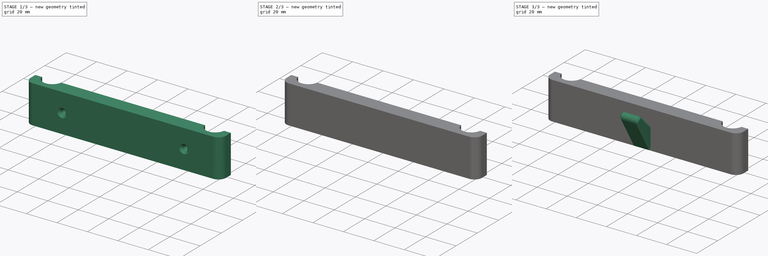
[diagram: build sequence overview — one tinted view per stage of 3, left to right]
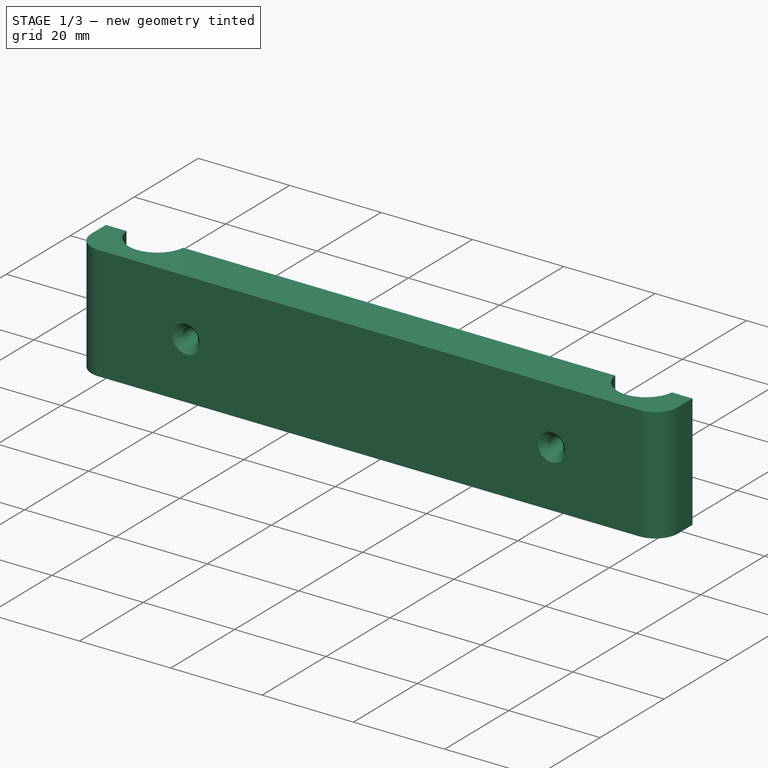
[diagram: stage 1 of 3 — iso view after this stage's code; geometry added in this stage tinted green]
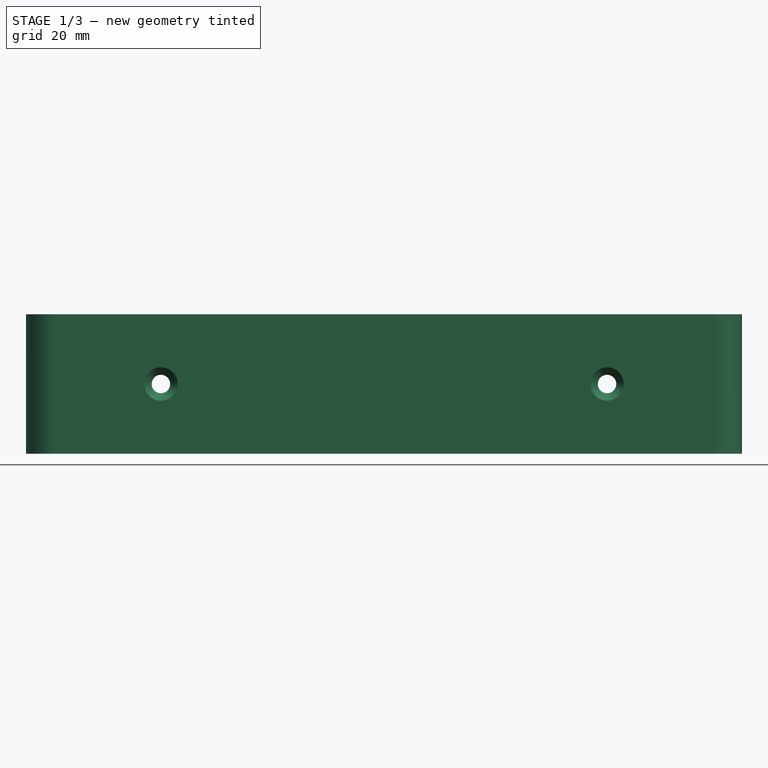
[diagram: stage 1 of 3 — front view after this stage's code; geometry added in this stage tinted green]
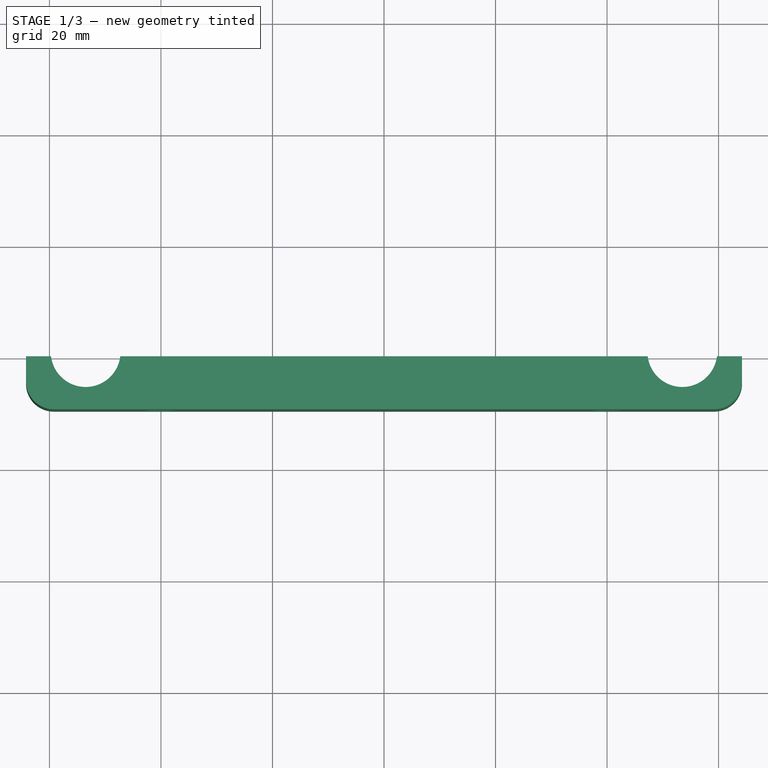
[diagram: stage 1 of 3 — top view after this stage's code; geometry added in this stage tinted green]
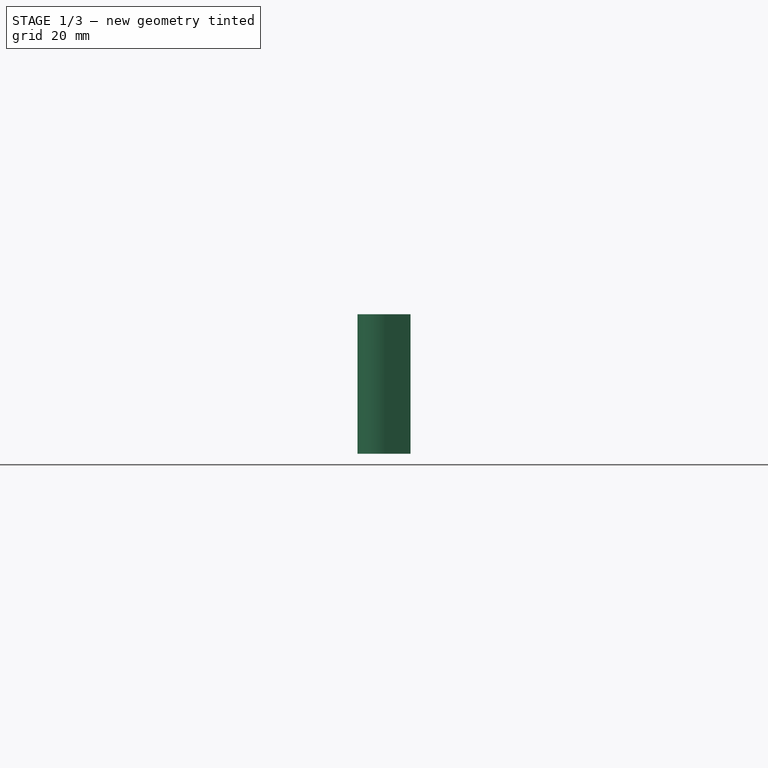
[diagram: stage 1 of 3 — right view after this stage's code; geometry added in this stage tinted green]
FCSTD DOCUMENT  (FreeCAD 0.19R22846 (Git))
Label: kleiderhaken_gelaender
License: All rights reserved
LicenseURL: http://en.wikipedia.org/wiki/All_rights_reserved
objects: Sketcher::SketchObject×5, PartDesign::Pad×3, PartDesign::Hole×2, PartDesign::Body×2, PartDesign::Chamfer×1
note: 19 computed .brp shape members not serialized (recipe doc carries the construction recipe); baked Part::Feature solids carry a one-line shape summary decoded from their .brp

FEATURE [PartDesign::Body] Body  label="Body_haken"
  Group = -> [Sketch,Pad,Sketch001,Hole,Sketch002,Pad001,Chamfer]
  Origin = -> Origin
  Tip = -> Chamfer
FEATURE [Sketcher::SketchObject] Sketch003  label="sk_basis001"
  MapMode = 5
  sketch-geometry (12):
    g0: LineSegment StartX=-64.2048 StartY=1.2e-15 StartZ=0 EndX=-59.7048 EndY=1.2e-15 EndZ=0
    g1: LineSegment StartX=64.2048 StartY=0 StartZ=0 EndX=64.2048 EndY=-4.5 EndZ=0
    g2: LineSegment StartX=59.2048 StartY=-9.5 StartZ=0 EndX=-59.2048 EndY=-9.5 EndZ=0
    g3: LineSegment StartX=-64.2048 StartY=-4.5 StartZ=0 EndX=-64.2048 EndY=9e-16 EndZ=0
    g4: ArcOfCircle CenterX=-53.5 CenterY=0.75 CenterZ=0 NormalX=0 NormalY=0 NormalZ=1 AngleXU=0 Radius=6.25 StartAngle=3.26188 EndAngle=6.1629
    g5: ArcOfCircle CenterX=53.5 CenterY=0.75 CenterZ=0 NormalX=0 NormalY=0 NormalZ=1 AngleXU=0 Radius=6.25 StartAngle=3.26188 EndAngle=6.1629
    g6: LineSegment StartX=-47.2952 StartY=-1e-15 StartZ=0 EndX=47.2952 EndY=0 EndZ=0
    g7: LineSegment StartX=59.7048 StartY=0 StartZ=0 EndX=64.2048 EndY=0 EndZ=0
    g8: LineSegment [constr] StartX=47.2952 StartY=1.2e-15 StartZ=0 EndX=53.5 EndY=-5.5 EndZ=0
    g9: LineSegment [constr] StartX=59.7048 StartY=-1e-15 StartZ=0 EndX=53.5 EndY=-5.5 EndZ=0
    g10: ArcOfCircle CenterX=59.2048 CenterY=-4.5 CenterZ=0 NormalX=0 NormalY=0 NormalZ=1 AngleXU=0 Radius=5 StartAngle=4.71239 EndAngle=6.28319
    g11: ArcOfCircle CenterX=-59.2048 CenterY=-4.5 CenterZ=0 NormalX=0 NormalY=0 NormalZ=1 AngleXU=0 Radius=5 StartAngle=3.14159 EndAngle=4.71239
  constraints (35):
    c: Coincident(g7,g1)
    c: Coincident(g3,g0)
    c: Horizontal(g0)
    c: Horizontal(g2)
    c: Vertical(g1)
    c: Vertical(g3)
    c: PointOnObject(g5,g0)
    c: PointOnObject(g5,g0)
    c: Equal(g4,g5)
    c: Diameter(g4) = 12.5
    c: Coincident(g6,g4)
    c: Tangent(g0,g6)
    c: Coincident(g0,g4)
    c: PointOnObject(g6,g5)
    c: PointOnObject(g7,g5)
    c: Tangent(g6,g7)
    c: DistanceX(g4,g5) = 107
    c: Symmetric(g1,g0,g-1)
    c: Equal(g7,g0)
    c: Coincident(g8,g5)
    c: PointOnObject(g8,g5)
    c: Coincident(g9,g5)
    c: Coincident(g9,g8)
    c: Equal(g9,g8)
    c: Equal(g1,g7)
    c: Tangent(g1,g10) = 1.5708
    c: Tangent(g2,g10) = 1.5708
    c: Tangent(g2,g11) = 1.5708
    c: Tangent(g3,g11) = 1.5708
    c: Radius(g10) = 5
    c: Equal(g11,g10)
    c: DistanceY(g2,g8) = 4
    c: Horizontal(g5,g4)
    c: DistanceY(g5) = 0.75
    c: DistanceY(g2,g5) = 9.5  'dicke'
FEATURE [Sketcher::SketchObject] Sketch004  label="sk_gewindeeinsatz001"
  AttachmentOffset = pos=(0,0,9.5) rot=(0,0,1;0rad)
  MapMode = 5
  Placement = pos=(0,-9.5,-2.1e-15) rot=(1,0,0;1.5708rad)
  Support = -> [XZ_Plane001]
  expr: .AttachmentOffset.Base.z = <<sk_basis001>>.Constraints.dicke
  sketch-geometry (4):
    g0: Circle CenterX=-40 CenterY=0 CenterZ=0 NormalX=0 NormalY=0 NormalZ=1 AngleXU=0 Radius=2
    g1: Circle CenterX=40 CenterY=0 CenterZ=0 NormalX=0 NormalY=0 NormalZ=1 AngleXU=0 Radius=2
    g2: LineSegment [constr] StartX=-40 StartY=0 StartZ=0 EndX=0 EndY=0 EndZ=0
    g3: LineSegment [constr] StartX=0 StartY=0 StartZ=0 EndX=40 EndY=0 EndZ=0
  constraints (10):
    c: PointOnObject(g0,g-1)
    c: PointOnObject(g1,g-1)
    c: DistanceX(g1) = 40
    c: Coincident(g2,g0)
    c: Coincident(g2,g-1)
    c: Coincident(g3,g-1)
    c: Coincident(g3,g1)
    c: Equal(g2,g3)
    c: Equal(g0,g1)
    c: Diameter(g0) = 4
FEATURE [PartDesign::Pad] Pad002  label="grundkoerper001"
  Direction = (1,1,1)
  Length = 25
  Length2 = 100
  Midplane = true
  Profile = -> Sketch003
  Refine = true
  Type = 0
FEATURE [PartDesign::Hole] Hole001  label="bohrung_schrauben"
  BaseFeature = -> Pad002
  Depth = 25
  DepthType = 0
  Diameter = 3.3
  DrillPoint = 1
  DrillPointAngle = 118
  HoleCutCountersinkAngle = 90
  HoleCutDepth = 0
  HoleCutDiameter = 6
  HoleCutType = 2
  ModelActualThread = false
  Profile = -> Sketch004
  Refine = true
  Tapered = false
  TaperedAngle = 90
  ThreadAngle = 0
  ThreadClass = 0
  ThreadCutOffInner = 0
  ThreadCutOffOuter = 0
  ThreadDirection = 0
  ThreadFit = 0
  ThreadPitch = 0
  ThreadSize = 3
  ThreadType = 1
  Threaded = false
FEATURE [PartDesign::Body] Body001  label="Body_rueckseite"
  Group = -> [Sketch003,Sketch004,Pad002,Hole001]
  Origin = -> Origin001
  Tip = -> Hole001
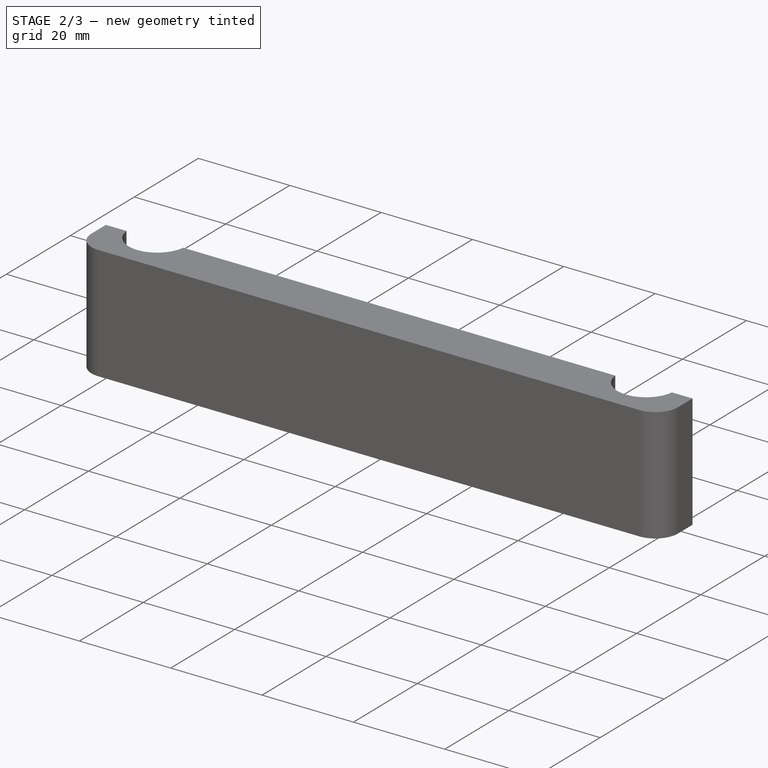
[diagram: stage 2 of 3 — iso view after this stage's code; geometry added in this stage tinted green]
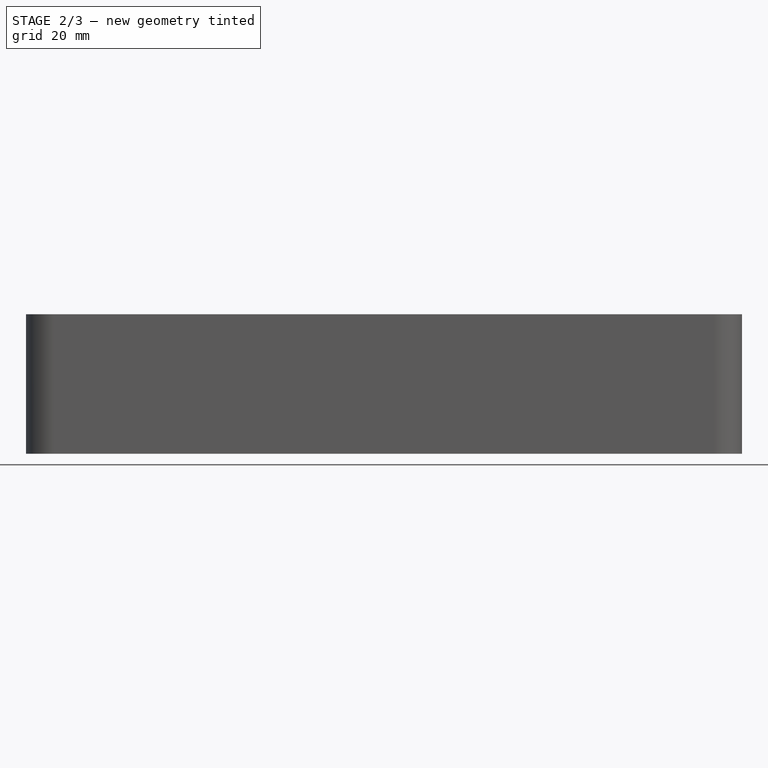
[diagram: stage 2 of 3 — front view after this stage's code; geometry added in this stage tinted green]
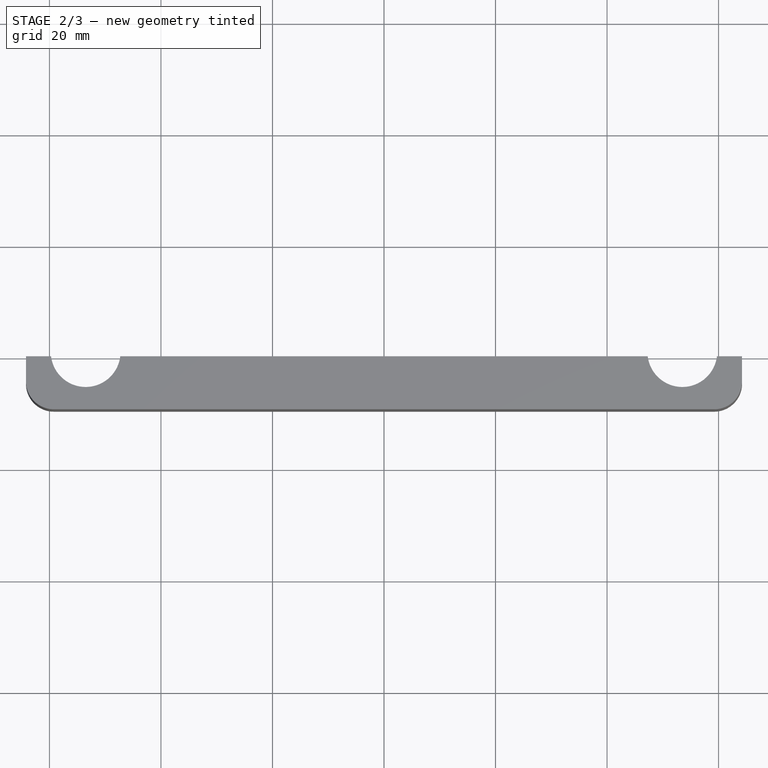
[diagram: stage 2 of 3 — top view after this stage's code; geometry added in this stage tinted green]
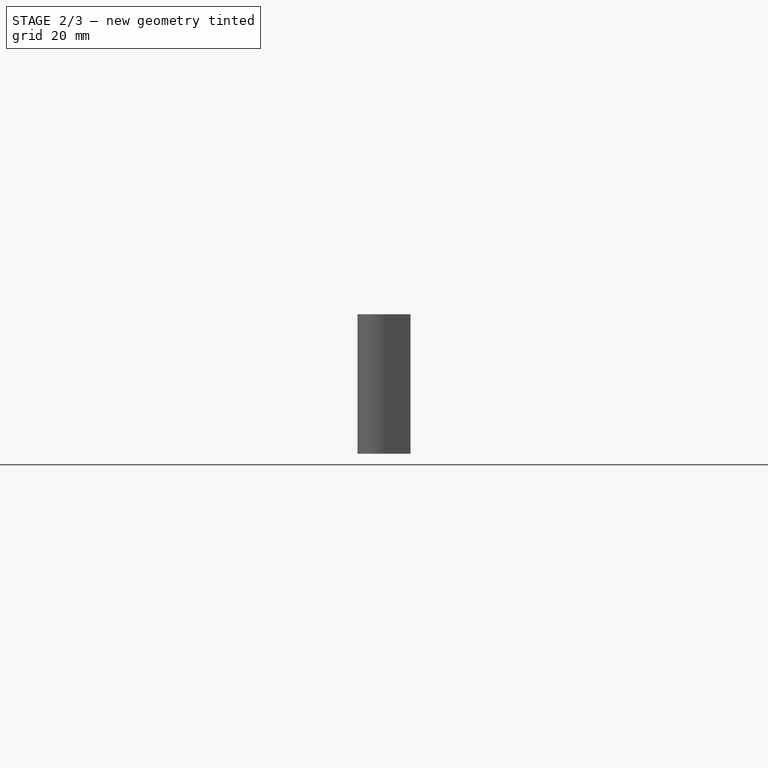
[diagram: stage 2 of 3 — right view after this stage's code; geometry added in this stage tinted green]
FEATURE [Sketcher::SketchObject] Sketch  label="sk_basis"
  MapMode = 5
  sketch-geometry (12):
    g0: LineSegment StartX=-64.2048 StartY=1.2e-15 StartZ=0 EndX=-59.7048 EndY=1.2e-15 EndZ=0
    g1: LineSegment StartX=64.2048 StartY=0 StartZ=0 EndX=64.2048 EndY=-4.5 EndZ=0
    g2: LineSegment StartX=59.2048 StartY=-9.5 StartZ=0 EndX=-59.2048 EndY=-9.5 EndZ=0
    g3: LineSegment StartX=-64.2048 StartY=-4.5 StartZ=0 EndX=-64.2048 EndY=9e-16 EndZ=0
    g4: ArcOfCircle CenterX=-53.5 CenterY=0.75 CenterZ=0 NormalX=0 NormalY=0 NormalZ=1 AngleXU=0 Radius=6.25 StartAngle=3.26188 EndAngle=6.1629
    g5: ArcOfCircle CenterX=53.5 CenterY=0.75 CenterZ=0 NormalX=0 NormalY=0 NormalZ=1 AngleXU=0 Radius=6.25 StartAngle=3.26188 EndAngle=6.1629
    g6: LineSegment StartX=-47.2952 StartY=-1e-15 StartZ=0 EndX=47.2952 EndY=0 EndZ=0
    g7: LineSegment StartX=59.7048 StartY=0 StartZ=0 EndX=64.2048 EndY=0 EndZ=0
    g8: LineSegment [constr] StartX=47.2952 StartY=1.2e-15 StartZ=0 EndX=53.5 EndY=-5.5 EndZ=0
    g9: LineSegment [constr] StartX=59.7048 StartY=-1e-15 StartZ=0 EndX=53.5 EndY=-5.5 EndZ=0
    g10: ArcOfCircle CenterX=59.2048 CenterY=-4.5 CenterZ=0 NormalX=0 NormalY=0 NormalZ=1 AngleXU=0 Radius=5 StartAngle=4.71239 EndAngle=6.28319
    g11: ArcOfCircle CenterX=-59.2048 CenterY=-4.5 CenterZ=0 NormalX=0 NormalY=0 NormalZ=1 AngleXU=0 Radius=5 StartAngle=3.14159 EndAngle=4.71239
  constraints (34):
    c: Coincident(g7,g1)
    c: Coincident(g3,g0)
    c: Horizontal(g0)
    c: Horizontal(g2)
    c: Vertical(g1)
    c: Vertical(g3)
    c: PointOnObject(g5,g0)
    c: PointOnObject(g5,g0)
    c: Equal(g4,g5)
    c: Diameter(g4) = 12.5
    c: Coincident(g6,g4)
    c: Tangent(g0,g6)
    c: Coincident(g0,g4)
    c: PointOnObject(g6,g5)
    c: PointOnObject(g7,g5)
    c: Tangent(g6,g7)
    c: DistanceX(g4,g5) = 107
    c: Symmetric(g1,g0,g-1)
    c: Equal(g7,g0)
    c: Coincident(g8,g5)
    c: PointOnObject(g8,g5)
    c: Coincident(g9,g5)
    c: Coincident(g9,g8)
    c: Equal(g9,g8)
    c: Equal(g1,g7)
    c: Tangent(g1,g10) = 1.5708
    c: Tangent(g2,g10) = 1.5708
    c: Tangent(g2,g11) = 1.5708
    c: Tangent(g3,g11) = 1.5708
    c: Radius(g10) = 5
    c: Equal(g11,g10)
    c: DistanceY(g2,g8) = 4
    c: Horizontal(g5,g4)
    c: DistanceY(g5) = 0.75
FEATURE [PartDesign::Pad] Pad  label="grundkoerper"
  Direction = (1,1,1)
  Length = 25
  Length2 = 100
  Midplane = true
  Profile = -> Sketch
  Refine = true
  Type = 0
FEATURE [Sketcher::SketchObject] Sketch001  label="sk_gewindeeinsatz"
  MapMode = 5
  Placement = pos=(0,0,0) rot=(1,0,0;1.5708rad)
  Support = -> [XZ_Plane]
  sketch-geometry (4):
    g0: Circle CenterX=-40 CenterY=0 CenterZ=0 NormalX=0 NormalY=0 NormalZ=1 AngleXU=0 Radius=2
    g1: Circle CenterX=40 CenterY=0 CenterZ=0 NormalX=0 NormalY=0 NormalZ=1 AngleXU=0 Radius=2
    g2: LineSegment [constr] StartX=-40 StartY=0 StartZ=0 EndX=0 EndY=0 EndZ=0
    g3: LineSegment [constr] StartX=0 StartY=0 StartZ=0 EndX=40 EndY=0 EndZ=0
  constraints (10):
    c: PointOnObject(g0,g-1)
    c: PointOnObject(g1,g-1)
    c: DistanceX(g1) = 40
    c: Coincident(g2,g0)
    c: Coincident(g2,g-1)
    c: Coincident(g3,g-1)
    c: Coincident(g3,g1)
    c: Equal(g2,g3)
    c: Equal(g0,g1)
    c: Diameter(g0) = 4
FEATURE [PartDesign::Hole] Hole  label="gewindeeinsatz"
  BaseFeature = -> Pad
  Depth = 5.5
  DepthType = 0
  Diameter = 4
  DrillPoint = 0
  DrillPointAngle = 118
  HoleCutCountersinkAngle = 90
  HoleCutDepth = 5
  HoleCutDiameter = 0
  HoleCutType = 0
  ModelActualThread = false
  Profile = -> Sketch001
  Refine = true
  Reversed = true
  Tapered = false
  TaperedAngle = 90
  ThreadAngle = 0
  ThreadClass = 0
  ThreadCutOffInner = 0
  ThreadCutOffOuter = 0
  ThreadDirection = 0
  ThreadFit = 0
  ThreadPitch = 0
  ThreadSize = 0
  ThreadType = 0
  Threaded = false
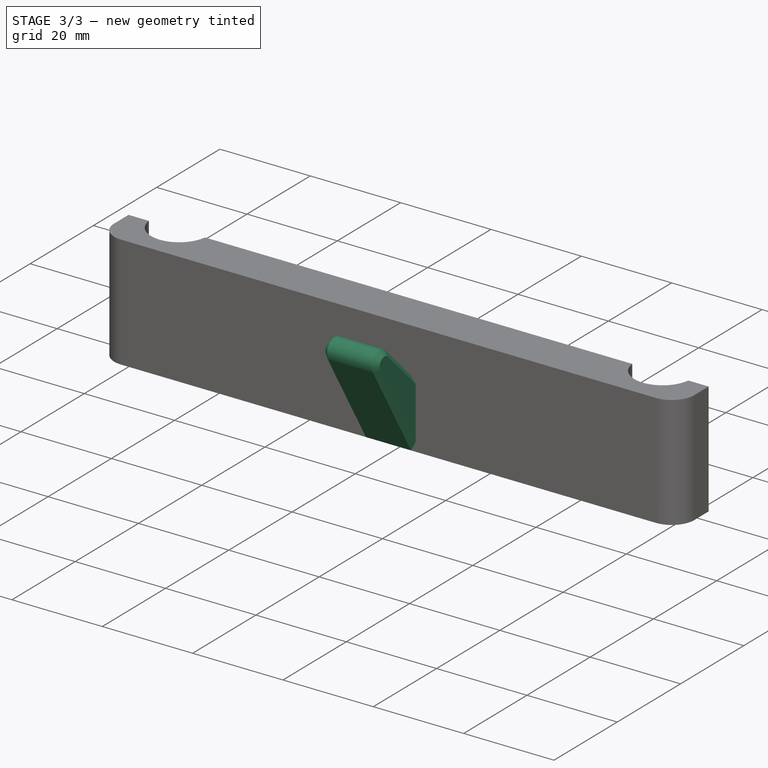
[diagram: stage 3 of 3 — iso view after this stage's code; geometry added in this stage tinted green]
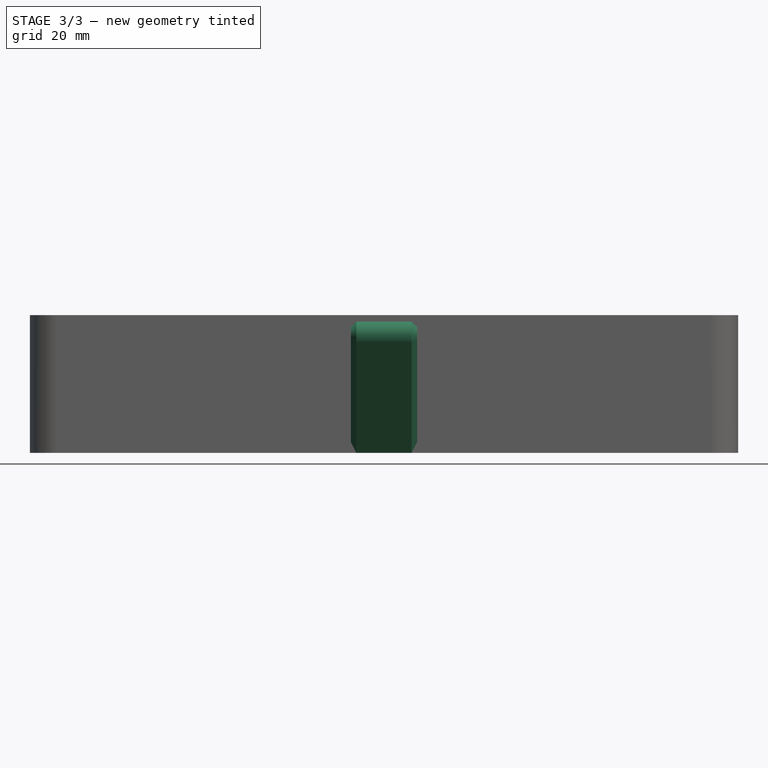
[diagram: stage 3 of 3 — front view after this stage's code; geometry added in this stage tinted green]
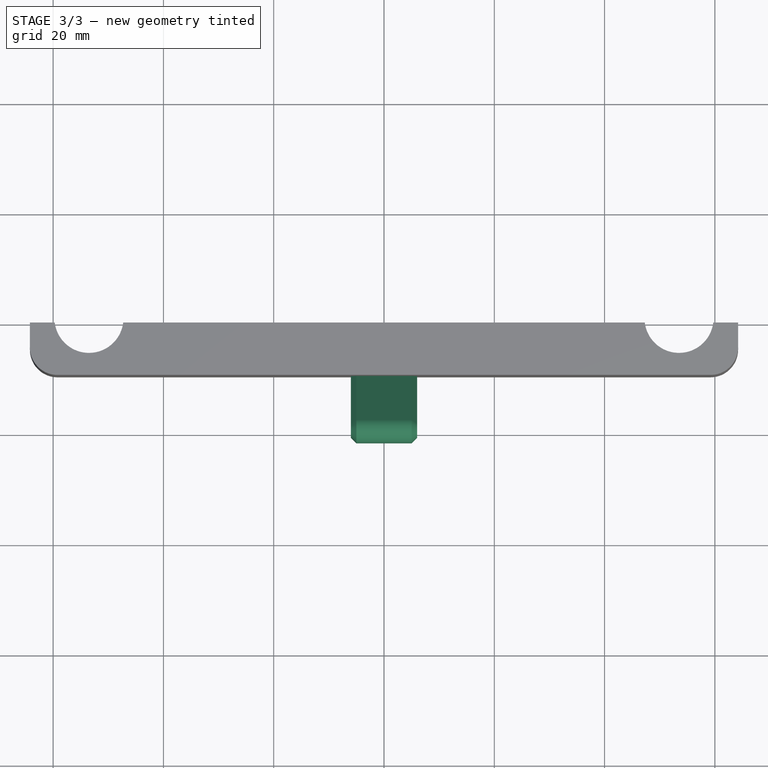
[diagram: stage 3 of 3 — top view after this stage's code; geometry added in this stage tinted green]
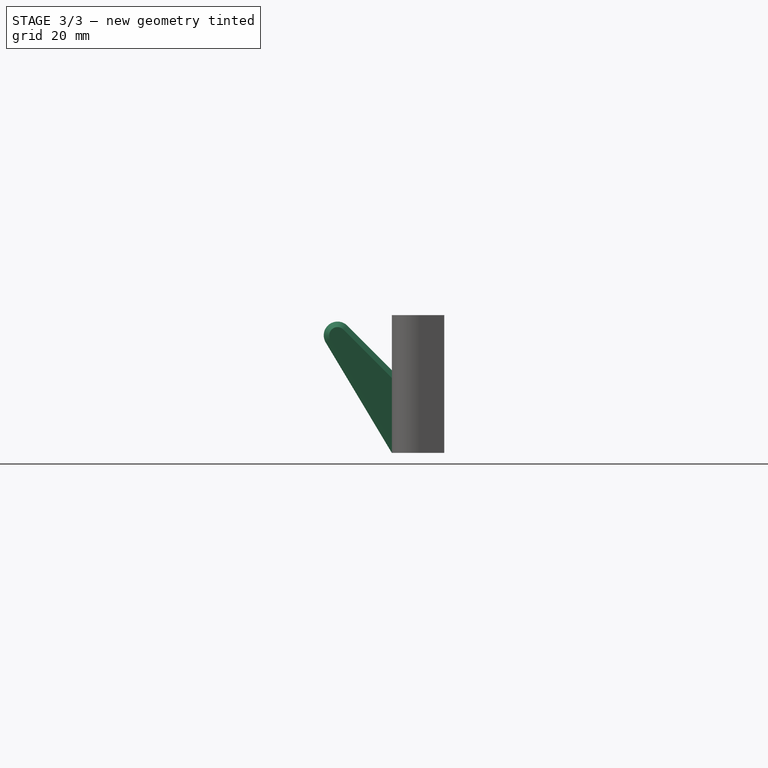
[diagram: stage 3 of 3 — right view after this stage's code; geometry added in this stage tinted green]
FEATURE [Sketcher::SketchObject] Sketch002  label="sk_haken"
  ExternalGeometry = -> [Hole]
  MapMode = 5
  Placement = pos=(0,0,0) rot=(0.57735,0.57735,0.57735;2.0944rad)
  Support = -> [YZ_Plane]
  sketch-geometry (4):
    g0: LineSegment StartX=-9.5 StartY=-12.5 StartZ=0 EndX=-21.5 EndY=7.53516 EndZ=0
    g1: LineSegment StartX=-17.5875 StartY=10.5875 StartZ=0 EndX=-9.5 EndY=2.5 EndZ=0
    g2: LineSegment StartX=-9.5 StartY=2.5 StartZ=0 EndX=-9.5 EndY=-12.5 EndZ=0
    g3: ArcOfCircle CenterX=-19.3553 CenterY=8.81974 CenterZ=0 NormalX=0 NormalY=0 NormalZ=1 AngleXU=0 Radius=2.5 StartAngle=0.785398 EndAngle=3.68124
  constraints (10):
    c: Coincident(g1,g2)
    c: Coincident(g0,g2)
    c: DistanceY(g2,g2) = 15
    c: Coincident(g-3,g0)
    c: Vertical(g2)
    c: Angle(g1,g2) = 2.35619
    c: Tangent(g0,g3) = 1.5708
    c: Tangent(g1,g3) = 1.5708
    c: Radius(g3) = 2.5
    c: DistanceX(g0,g1) = 12
FEATURE [PartDesign::Pad] Pad001  label="haken"
  BaseFeature = -> Hole
  Direction = (1,1,1)
  Length = 12
  Length2 = 100
  Midplane = true
  Profile = -> Sketch002
  Refine = true
  Type = 0
FEATURE [PartDesign::Chamfer] Chamfer  label="phase_haken"
  Angle = 45
  Base = -> Pad001 [Edge41,Edge44]
  BaseFeature = -> Pad001
  ChamferType = 0
  FlipDirection = false
  Refine = true
  Size = 1
  Size2 = 1
  SupportTransform = false
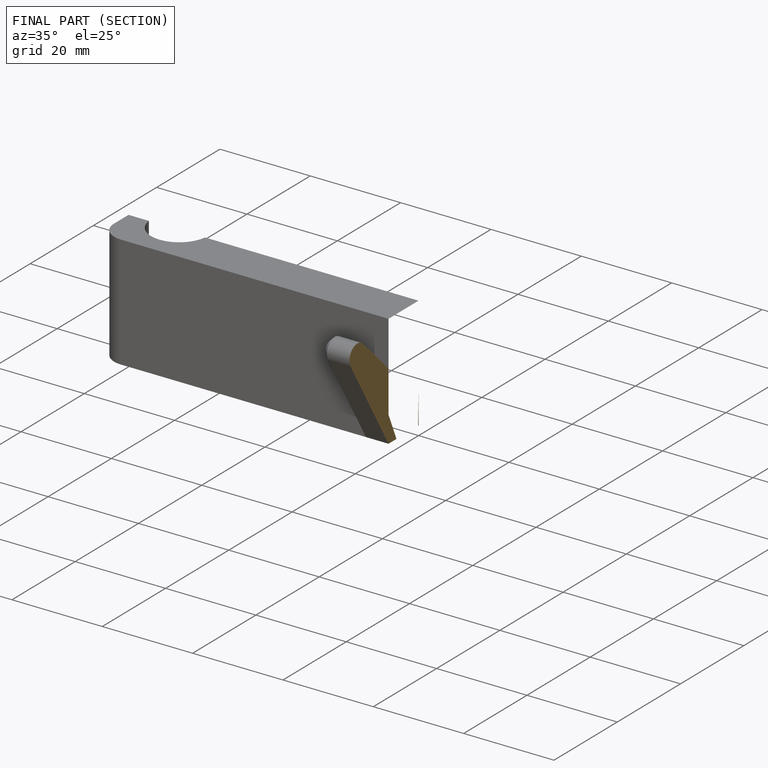
[diagram: finished part — half-section view (interior)]
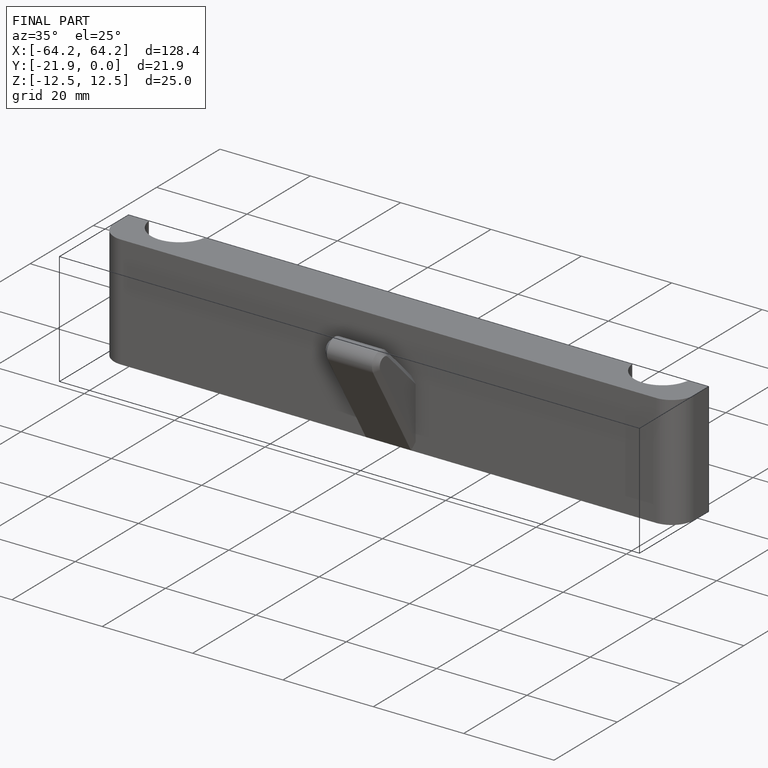
[diagram: finished part — iso view with bounding-box wireframe]
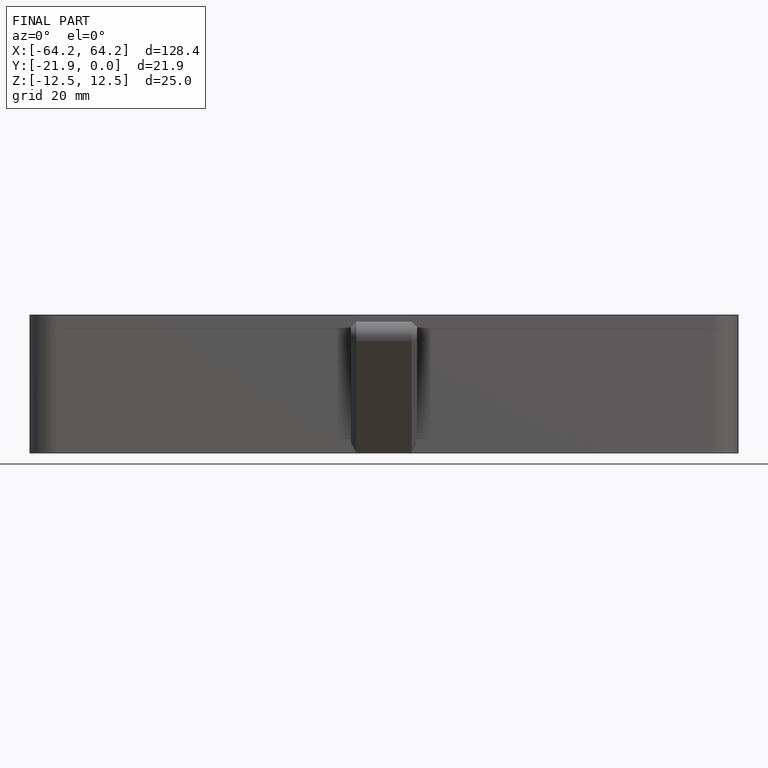
[diagram: finished part — front view with bounding-box wireframe]
